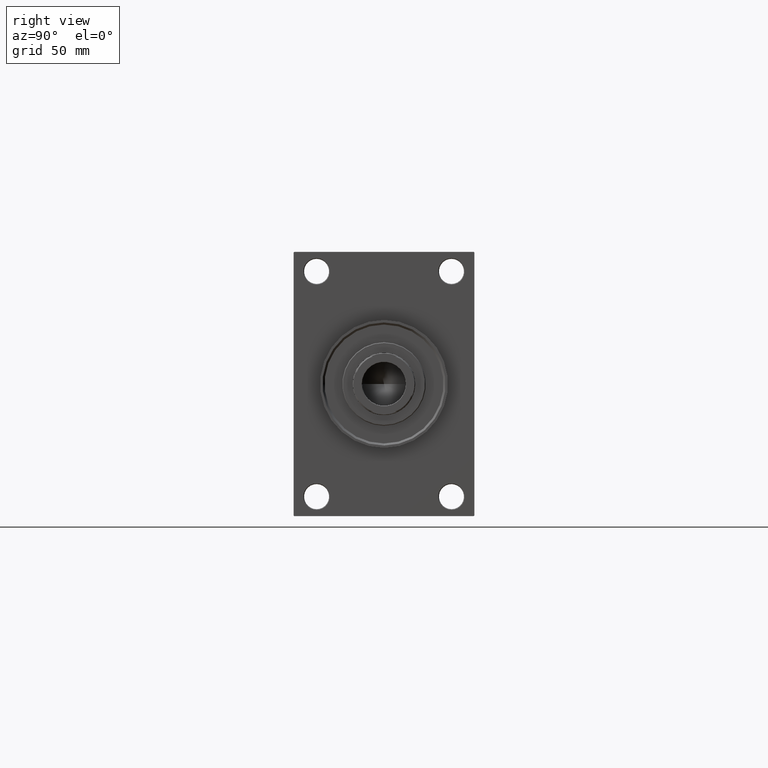
[diagram: clean part render]
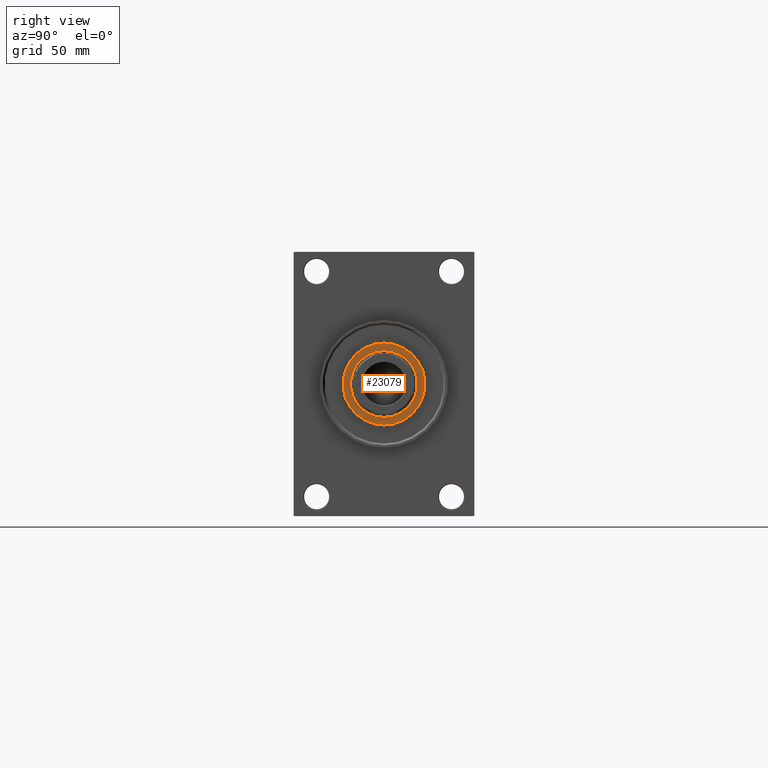
[diagram: same view with one face highlighted and labeled with its STEP entity id]
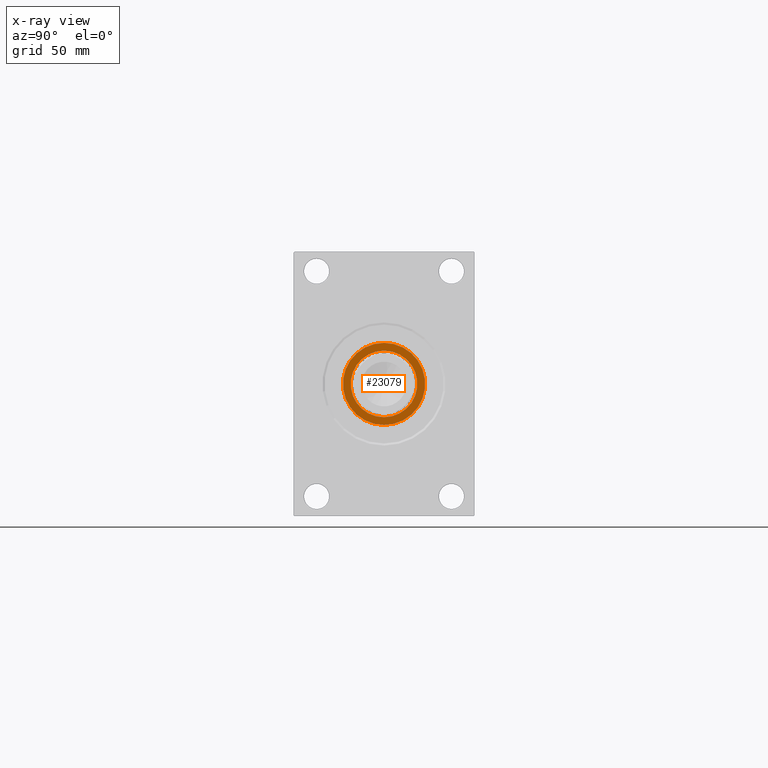
[diagram: x-ray of the same camera — body ghosted, the highlighted face saturated]
A machine part, right view. The second image highlights one B-rep face of the part: STEP entity #23079.
The next image is the same camera in x-ray: the body ghosted, the highlighted face saturated — about 0% of this face is hidden behind the body in this view.
In plain terms, the highlighted planar face has unit normal (1, -0, -0).
Its self-contained STEP definition (entity closure, byte-faithful):
#1938 = DIRECTION ( 'NONE',  ( 1.000000000000000000, 0.000000000000000000, -0.000000000000000000 ) ) ;
#2172 = FACE_BOUND ( 'NONE', #17709, .T. ) ;
#5325 = FACE_OUTER_BOUND ( 'NONE', #16983, .T. ) ;
#5566 = CARTESIAN_POINT ( 'NONE',  ( 0.000000000000000000, 0.000000000000000000, 52.25999999999999801 ) ) ;
#7527 = CARTESIAN_POINT ( 'NONE',  ( 24.00000000000000355, 0.000000000000000000, 52.25999999999999801 ) ) ;
#7693 = CIRCLE ( 'NONE', #10786, 24.00000000000000355 ) ;
#7863 = AXIS2_PLACEMENT_3D ( 'NONE', #34899, #9206, #27623 ) ;
#8962 = CARTESIAN_POINT ( 'NONE',  ( 0.000000000000000000, 0.000000000000000000, 52.25999999999999801 ) ) ;
#9206 = DIRECTION ( 'NONE',  ( 0.000000000000000000, 0.000000000000000000, 1.000000000000000000 ) ) ;
#9223 = AXIS2_PLACEMENT_3D ( 'NONE', #15436, #30919, #34560 ) ;
#9508 = ORIENTED_EDGE ( 'NONE', *, *, #44073, .T. ) ;
#10268 = VERTEX_POINT ( 'NONE', #40635 ) ;
#10786 = AXIS2_PLACEMENT_3D ( 'NONE', #8962, #31481, #15989 ) ;
#15436 = CARTESIAN_POINT ( 'NONE',  ( 0.000000000000000000, 0.000000000000000000, 52.25999999999999801 ) ) ;
#15989 = DIRECTION ( 'NONE',  ( 1.000000000000000000, 0.000000000000000000, 0.000000000000000000 ) ) ;
#16983 = EDGE_LOOP ( 'NONE', ( #9508, #47006 ) ) ;
#17709 = EDGE_LOOP ( 'NONE', ( #42803, #29133 ) ) ;
#19854 = DIRECTION ( 'NONE',  ( 0.000000000000000000, 0.000000000000000000, 1.000000000000000000 ) ) ;
#20980 = CIRCLE ( 'NONE', #7863, 29.50000000000000000 ) ;
#21949 = CARTESIAN_POINT ( 'NONE',  ( 0.000000000000000000, 0.000000000000000000, 52.25999999999999801 ) ) ;
#23079 = ADVANCED_FACE ( 'NONE', ( #2172, #5325 ), #46010, .T. ) ;
#25558 = AXIS2_PLACEMENT_3D ( 'NONE', #21949, #29464, #29706 ) ;
#26863 = EDGE_CURVE ( 'NONE', #29835, #10268, #47207, .T. ) ;
#27623 = DIRECTION ( 'NONE',  ( 1.000000000000000000, 0.000000000000000000, 0.000000000000000000 ) ) ;
#28393 = VERTEX_POINT ( 'NONE', #47279 ) ;
#29133 = ORIENTED_EDGE ( 'NONE', *, *, #38822, .F. ) ;
#29464 = DIRECTION ( 'NONE',  ( 0.000000000000000000, 0.000000000000000000, 1.000000000000000000 ) ) ;
#29706 = DIRECTION ( 'NONE',  ( 1.000000000000000000, 0.000000000000000000, 0.000000000000000000 ) ) ;
#29835 = VERTEX_POINT ( 'NONE', #7527 ) ;
#30919 = DIRECTION ( 'NONE',  ( 0.000000000000000000, 0.000000000000000000, 1.000000000000000000 ) ) ;
#31481 = DIRECTION ( 'NONE',  ( 0.000000000000000000, 0.000000000000000000, 1.000000000000000000 ) ) ;
#32516 = CARTESIAN_POINT ( 'NONE',  ( 29.50000000000000000, 3.643324227463375391E-15, 52.25999999999999801 ) ) ;
#34560 = DIRECTION ( 'NONE',  ( 1.000000000000000000, 0.000000000000000000, 0.000000000000000000 ) ) ;
#34899 = CARTESIAN_POINT ( 'NONE',  ( 0.000000000000000000, 0.000000000000000000, 52.25999999999999801 ) ) ;
#35663 = EDGE_CURVE ( 'NONE', #43787, #28393, #42492, .T. ) ;
#38822 = EDGE_CURVE ( 'NONE', #10268, #29835, #7693, .T. ) ;
#40111 = AXIS2_PLACEMENT_3D ( 'NONE', #5566, #19854, #1938 ) ;
#40635 = CARTESIAN_POINT ( 'NONE',  ( -24.00000000000000355, 2.939152317953648289E-15, 52.25999999999999801 ) ) ;
#42492 = CIRCLE ( 'NONE', #9223, 29.50000000000000000 ) ;
#42803 = ORIENTED_EDGE ( 'NONE', *, *, #26863, .F. ) ;
#43787 = VERTEX_POINT ( 'NONE', #32516 ) ;
#44073 = EDGE_CURVE ( 'NONE', #28393, #43787, #20980, .T. ) ;
#46010 = PLANE ( 'NONE',  #40111 ) ;
#47006 = ORIENTED_EDGE ( 'NONE', *, *, #35663, .T. ) ;
#47207 = CIRCLE ( 'NONE', #25558, 24.00000000000000355 ) ;
#47279 = CARTESIAN_POINT ( 'NONE',  ( -29.50000000000000000, 0.000000000000000000, 52.25999999999999801 ) ) ;